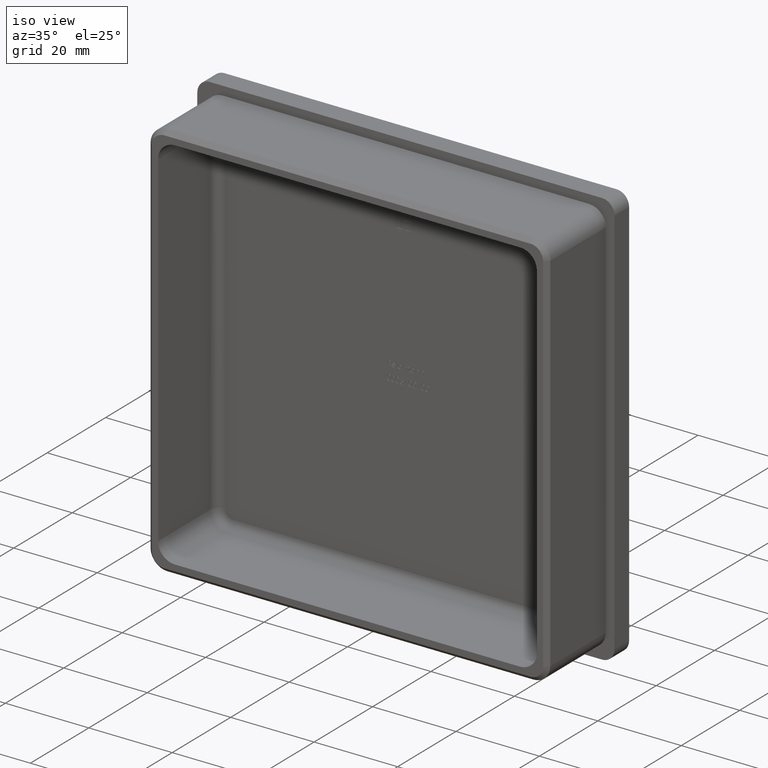
[diagram: clean part render]
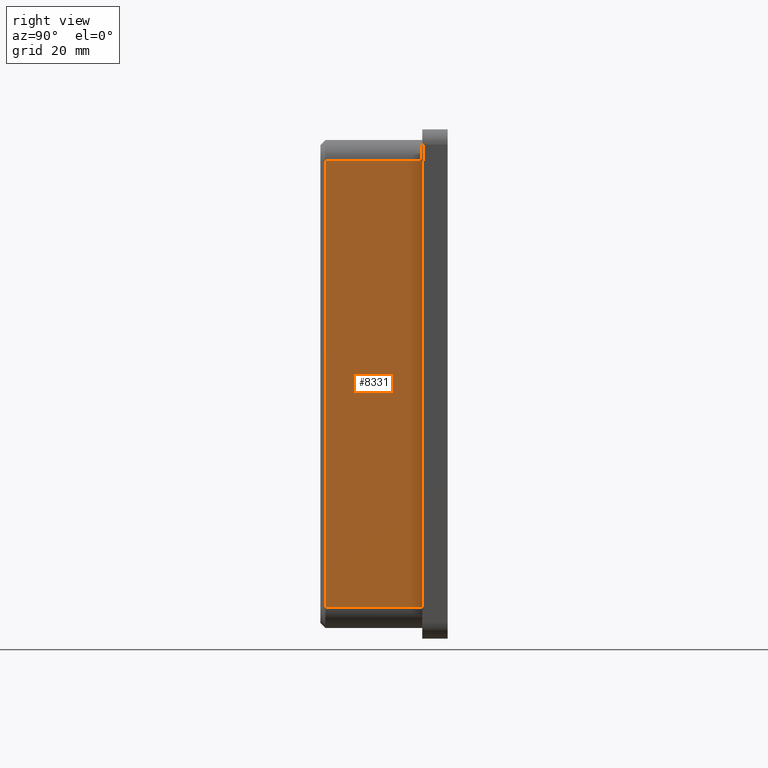
[diagram: tour spotlight — one face highlighted and labeled with its STEP entity id]
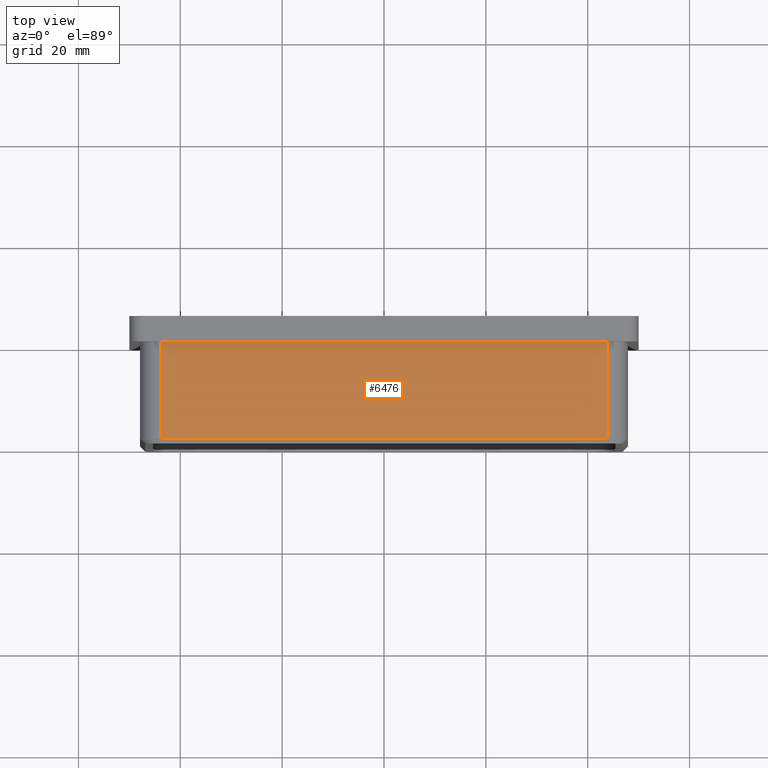
[diagram: tour spotlight — one face highlighted and labeled with its STEP entity id]
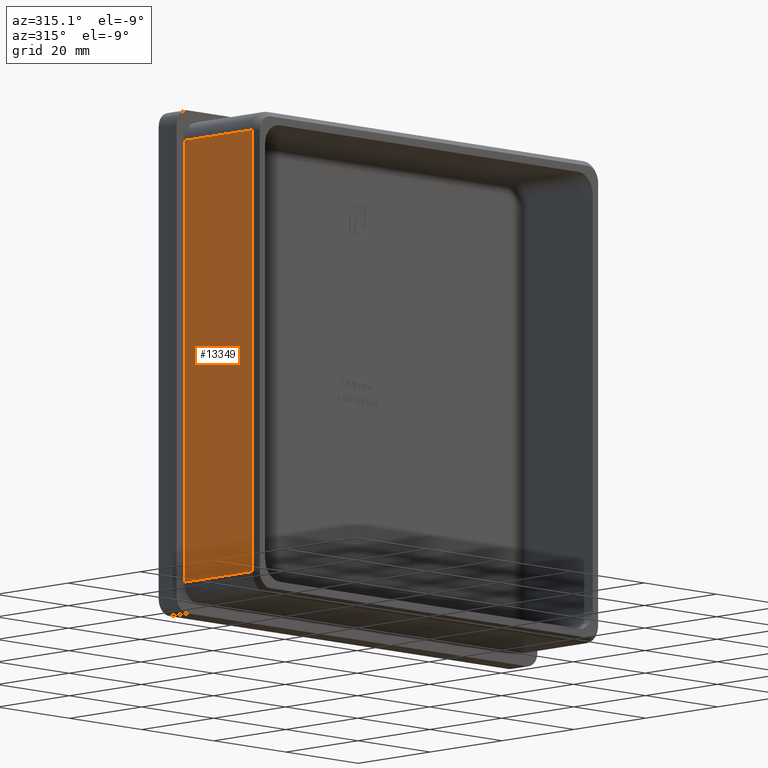
[diagram: tour spotlight — one face highlighted and labeled with its STEP entity id]
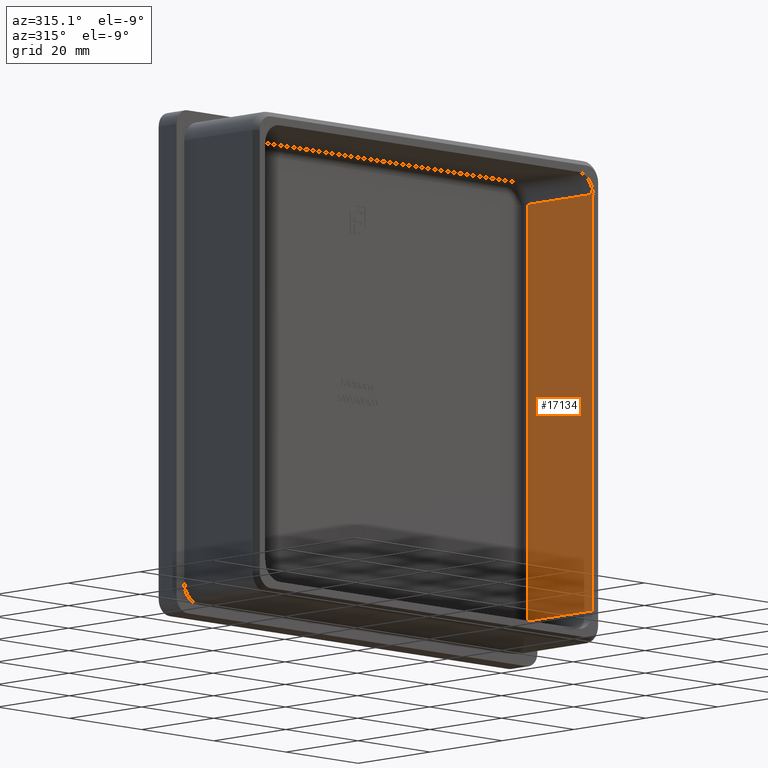
[diagram: tour spotlight — one face highlighted and labeled with its STEP entity id]
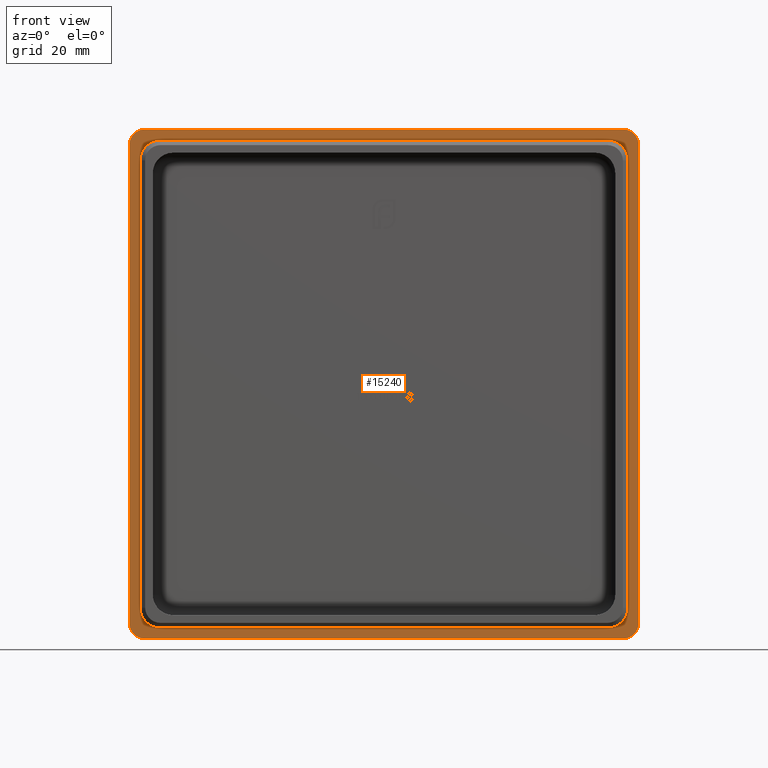
[diagram: tour spotlight — one face highlighted and labeled with its STEP entity id]
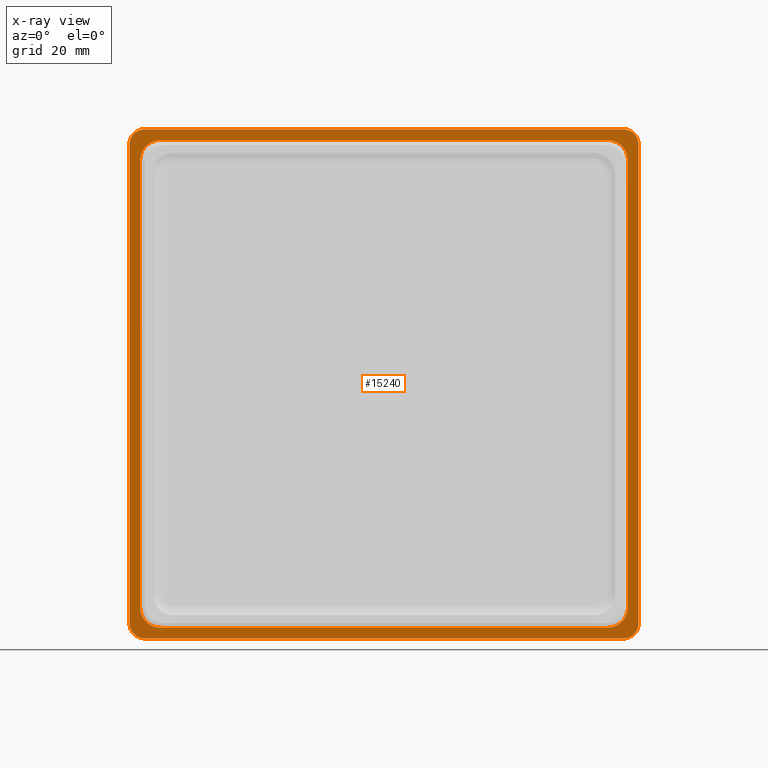
[diagram: x-ray of the same camera — body ghosted, this tour face saturated]
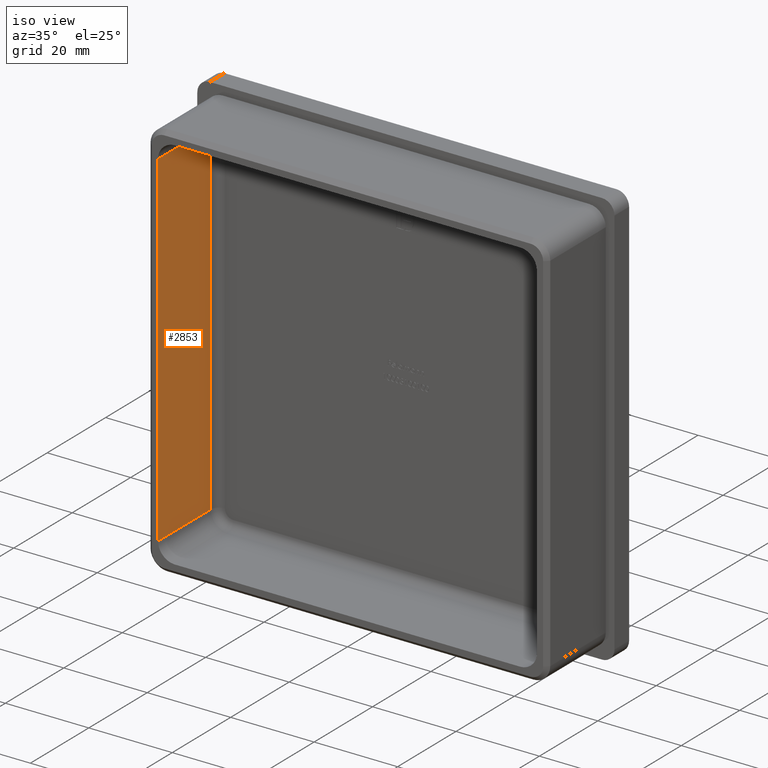
[diagram: tour spotlight — one face highlighted and labeled with its STEP entity id]
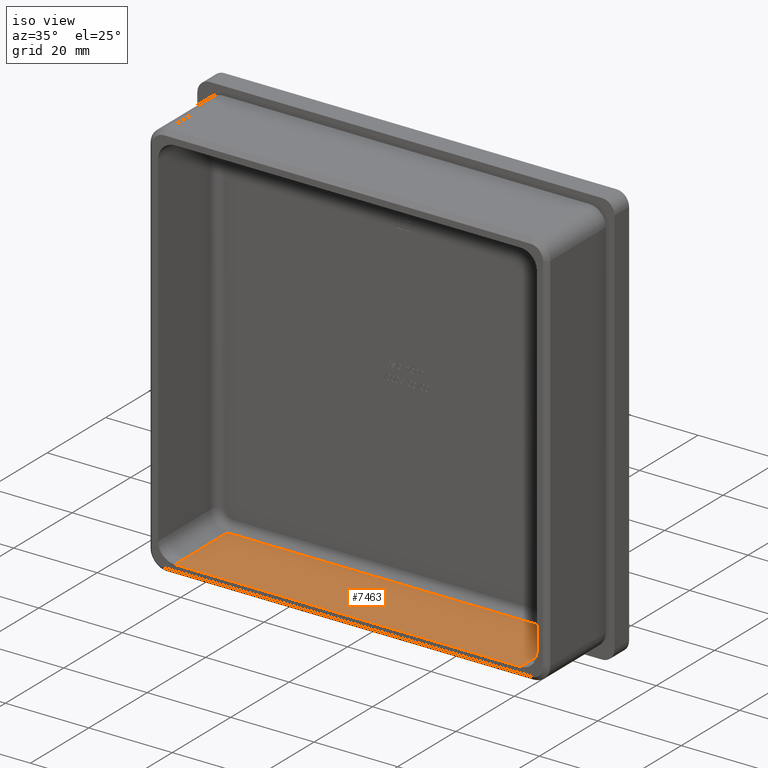
[diagram: tour spotlight — one face highlighted and labeled with its STEP entity id]
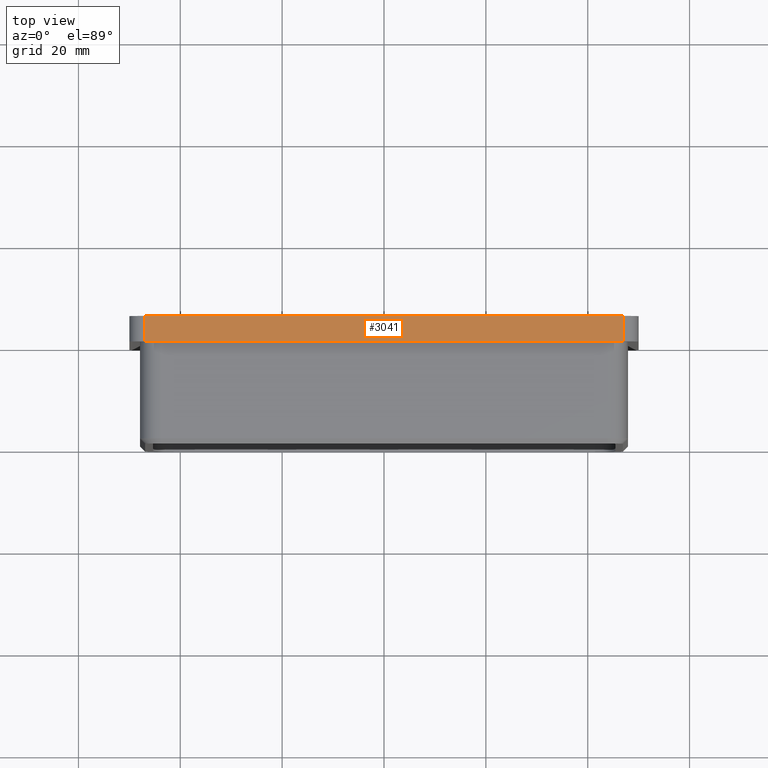
[diagram: tour spotlight — one face highlighted and labeled with its STEP entity id]
A machine part: a face-by-face anatomy tour. The part has 314 B-rep faces; the first image is the clean iso view, then the 8 largest visible faces are spotlighted one at a time (largest first), each with its STEP entity span.

Face 1 — right view, entity #8331. In plain terms, the highlighted planar face has unit normal (-1, 0, -0).
Definition (entity closure, byte-faithful):
#1013 = DIRECTION ( 'NONE',  ( -0.000000000000000000, -0.000000000000000000, 1.000000000000000000 ) ) ;
#1599 = ORIENTED_EDGE ( 'NONE', *, *, #6921, .T. ) ;
#1855 = ORIENTED_EDGE ( 'NONE', *, *, #3246, .T. ) ;
#2155 = DIRECTION ( 'NONE',  ( 0.000000000000000000, 1.000000000000000000, 0.000000000000000000 ) ) ;
#2304 = CARTESIAN_POINT ( 'NONE',  ( 47.90000000000001279, 0.000000000000000000, 47.90000000000000568 ) ) ;
#2632 = VERTEX_POINT ( 'NONE', #3455 ) ;
#3246 = EDGE_CURVE ( 'NONE', #14150, #15323, #3602, .T. ) ;
#3357 = VECTOR ( 'NONE', #1013, 1000.000000000000000 ) ;
#3455 = CARTESIAN_POINT ( 'NONE',  ( 47.90000000000001279, -18.99999999999998579, -43.90000000000001279 ) ) ;
#3602 = LINE ( 'NONE', #3964, #8641 ) ;
#3673 = ORIENTED_EDGE ( 'NONE', *, *, #5553, .T. ) ;
#3767 = CARTESIAN_POINT ( 'NONE',  ( 47.90000000000001279, 0.000000000000000000, 43.89999999999999858 ) ) ;
#3964 = CARTESIAN_POINT ( 'NONE',  ( 47.90000000000001279, -20.00000000000000000, 43.89999999999999858 ) ) ;
#3972 = FACE_OUTER_BOUND ( 'NONE', #5838, .T. ) ;
#4655 = VECTOR ( 'NONE', #2155, 1000.000000000000000 ) ;
#5259 = CARTESIAN_POINT ( 'NONE',  ( 47.90000000000001279, 0.000000000000000000, -43.89999999999998437 ) ) ;
#5553 = EDGE_CURVE ( 'NONE', #7032, #14150, #15803, .T. ) ;
#5838 = EDGE_LOOP ( 'NONE', ( #1855, #14302, #1599, #3673 ) ) ;
#5841 = LINE ( 'NONE', #18059, #9334 ) ;
#6921 = EDGE_CURVE ( 'NONE', #2632, #7032, #12087, .T. ) ;
#6945 = CARTESIAN_POINT ( 'NONE',  ( 47.90000000000001279, -18.99999999999998579, 43.89999999999999858 ) ) ;
#7032 = VERTEX_POINT ( 'NONE', #5259 ) ;
#7334 = CARTESIAN_POINT ( 'NONE',  ( 47.90000000000001279, -20.00000000000000000, 47.90000000000000568 ) ) ;
#8331 = ADVANCED_FACE ( 'NONE', ( #3972 ), #8674, .F. ) ;
#8641 = VECTOR ( 'NONE', #15186, 1000.000000000000000 ) ;
#8674 = PLANE ( 'NONE',  #14330 ) ;
#9334 = VECTOR ( 'NONE', #10950, 1000.000000000000000 ) ;
#10004 = DIRECTION ( 'NONE',  ( -1.000000000000000000, 0.000000000000000000, -0.000000000000000000 ) ) ;
#10125 = DIRECTION ( 'NONE',  ( -0.000000000000000000, 0.000000000000000000, 1.000000000000000000 ) ) ;
#10950 = DIRECTION ( 'NONE',  ( 0.000000000000000000, 0.000000000000000000, -1.000000000000000000 ) ) ;
#12087 = LINE ( 'NONE', #16017, #4655 ) ;
#14150 = VERTEX_POINT ( 'NONE', #3767 ) ;
#14302 = ORIENTED_EDGE ( 'NONE', *, *, #16723, .T. ) ;
#14330 = AXIS2_PLACEMENT_3D ( 'NONE', #7334, #10004, #10125 ) ;
#15186 = DIRECTION ( 'NONE',  ( -0.000000000000000000, -1.000000000000000000, -0.000000000000000000 ) ) ;
#15323 = VERTEX_POINT ( 'NONE', #6945 ) ;
#15803 = LINE ( 'NONE', #2304, #3357 ) ;
#16017 = CARTESIAN_POINT ( 'NONE',  ( 47.90000000000001279, -20.00000000000000000, -43.90000000000001279 ) ) ;
#16723 = EDGE_CURVE ( 'NONE', #15323, #2632, #5841, .T. ) ;
#18059 = CARTESIAN_POINT ( 'NONE',  ( 47.90000000000001279, -18.99999999999998579, -43.89999999999998437 ) ) ;

Face 2 — top view, entity #6476. In plain terms, the highlighted planar face has unit normal (-0, 0, -1).
Definition (entity closure, byte-faithful):
#61 = DIRECTION ( 'NONE',  ( 1.000000000000000000, 0.000000000000000000, -7.243104283828003370E-17 ) ) ;
#63 = VECTOR ( 'NONE', #925, 1000.000000000000000 ) ;
#409 = DIRECTION ( 'NONE',  ( 0.000000000000000000, 1.000000000000000000, 0.000000000000000000 ) ) ;
#603 = DIRECTION ( 'NONE',  ( -0.000000000000000000, -1.000000000000000000, -0.000000000000000000 ) ) ;
#869 = ORIENTED_EDGE ( 'NONE', *, *, #17772, .T. ) ;
#903 = VERTEX_POINT ( 'NONE', #16320 ) ;
#925 = DIRECTION ( 'NONE',  ( -1.000000000000000000, -0.000000000000000000, 7.243104283828003370E-17 ) ) ;
#3251 = VECTOR ( 'NONE', #61, 1000.000000000000000 ) ;
#3495 = CARTESIAN_POINT ( 'NONE',  ( -47.90000000000001279, 0.000000000000000000, 47.90000000000001279 ) ) ;
#3543 = LINE ( 'NONE', #3495, #63 ) ;
#3927 = VECTOR ( 'NONE', #603, 1000.000000000000000 ) ;
#4299 = LINE ( 'NONE', #11411, #6474 ) ;
#5110 = FACE_OUTER_BOUND ( 'NONE', #9391, .T. ) ;
#6474 = VECTOR ( 'NONE', #409, 1000.000000000000000 ) ;
#6476 = ADVANCED_FACE ( 'NONE', ( #5110 ), #6559, .F. ) ;
#6559 = PLANE ( 'NONE',  #7319 ) ;
#7319 = AXIS2_PLACEMENT_3D ( 'NONE', #14735, #16334, #10836 ) ;
#8056 = EDGE_CURVE ( 'NONE', #11578, #903, #3543, .T. ) ;
#8312 = ORIENTED_EDGE ( 'NONE', *, *, #8056, .T. ) ;
#8478 = CARTESIAN_POINT ( 'NONE',  ( 43.89999999999997726, -18.99999999999998579, 47.90000000000000568 ) ) ;
#9391 = EDGE_LOOP ( 'NONE', ( #16371, #11603, #869, #8312 ) ) ;
#9807 = VERTEX_POINT ( 'NONE', #11026 ) ;
#10015 = CARTESIAN_POINT ( 'NONE',  ( 43.89999999999997726, 0.000000000000000000, 47.90000000000000568 ) ) ;
#10836 = DIRECTION ( 'NONE',  ( -1.000000000000000000, 0.000000000000000000, 7.243104283828003370E-17 ) ) ;
#11026 = CARTESIAN_POINT ( 'NONE',  ( -43.90000000000000568, -18.99999999999998579, 47.90000000000001279 ) ) ;
#11411 = CARTESIAN_POINT ( 'NONE',  ( 43.90000000000000568, -20.00000000000000000, 47.90000000000000568 ) ) ;
#11578 = VERTEX_POINT ( 'NONE', #10015 ) ;
#11603 = ORIENTED_EDGE ( 'NONE', *, *, #15371, .T. ) ;
#12022 = CARTESIAN_POINT ( 'NONE',  ( -43.90000000000000568, -20.00000000000000000, 47.90000000000001279 ) ) ;
#13509 = EDGE_CURVE ( 'NONE', #903, #9807, #16837, .T. ) ;
#14735 = CARTESIAN_POINT ( 'NONE',  ( -47.90000000000001279, -20.00000000000000000, 47.90000000000001279 ) ) ;
#15371 = EDGE_CURVE ( 'NONE', #9807, #17454, #16133, .T. ) ;
#16094 = CARTESIAN_POINT ( 'NONE',  ( 43.90000000000000568, -18.99999999999998579, 47.90000000000000568 ) ) ;
#16133 = LINE ( 'NONE', #8478, #3251 ) ;
#16320 = CARTESIAN_POINT ( 'NONE',  ( -43.90000000000000568, 0.000000000000000000, 47.90000000000001279 ) ) ;
#16334 = DIRECTION ( 'NONE',  ( -7.243104283828003370E-17, 0.000000000000000000, -1.000000000000000000 ) ) ;
#16371 = ORIENTED_EDGE ( 'NONE', *, *, #13509, .T. ) ;
#16837 = LINE ( 'NONE', #12022, #3927 ) ;
#17454 = VERTEX_POINT ( 'NONE', #16094 ) ;
#17772 = EDGE_CURVE ( 'NONE', #17454, #11578, #4299, .T. ) ;

Face 3 — auxiliary view, entity #13349. In plain terms, the highlighted planar face has unit normal (1, 0, 0).
Definition (entity closure, byte-faithful):
#738 = CARTESIAN_POINT ( 'NONE',  ( -47.90000000000001279, -18.99999999999998579, 43.90000000000000568 ) ) ;
#1496 = ORIENTED_EDGE ( 'NONE', *, *, #3074, .T. ) ;
#1680 = CARTESIAN_POINT ( 'NONE',  ( -47.90000000000001279, -18.99999999999998579, -43.90000000000000568 ) ) ;
#2192 = VECTOR ( 'NONE', #12072, 1000.000000000000000 ) ;
#2308 = ORIENTED_EDGE ( 'NONE', *, *, #4818, .T. ) ;
#2714 = EDGE_CURVE ( 'NONE', #15087, #15053, #8192, .T. ) ;
#3074 = EDGE_CURVE ( 'NONE', #5816, #15087, #5999, .T. ) ;
#3270 = CARTESIAN_POINT ( 'NONE',  ( -47.90000000000001279, -20.00000000000000000, 43.90000000000000568 ) ) ;
#3305 = PLANE ( 'NONE',  #6282 ) ;
#3517 = DIRECTION ( 'NONE',  ( 0.000000000000000000, -0.000000000000000000, -1.000000000000000000 ) ) ;
#3572 = CARTESIAN_POINT ( 'NONE',  ( -47.90000000000001279, 0.000000000000000000, 47.90000000000001279 ) ) ;
#3696 = CARTESIAN_POINT ( 'NONE',  ( -47.90000000000001279, 0.000000000000000000, -43.89999999999997726 ) ) ;
#4818 = EDGE_CURVE ( 'NONE', #15053, #16541, #11662, .T. ) ;
#5349 = VECTOR ( 'NONE', #13061, 1000.000000000000000 ) ;
#5816 = VERTEX_POINT ( 'NONE', #1680 ) ;
#5903 = LINE ( 'NONE', #17943, #2192 ) ;
#5999 = LINE ( 'NONE', #738, #5349 ) ;
#6186 = ORIENTED_EDGE ( 'NONE', *, *, #10885, .T. ) ;
#6247 = ORIENTED_EDGE ( 'NONE', *, *, #2714, .T. ) ;
#6282 = AXIS2_PLACEMENT_3D ( 'NONE', #8682, #7341, #10075 ) ;
#6318 = FACE_OUTER_BOUND ( 'NONE', #11683, .T. ) ;
#7341 = DIRECTION ( 'NONE',  ( 1.000000000000000000, 0.000000000000000000, 0.000000000000000000 ) ) ;
#7874 = CARTESIAN_POINT ( 'NONE',  ( -47.90000000000001279, -18.99999999999998579, 43.90000000000000568 ) ) ;
#7981 = VECTOR ( 'NONE', #15958, 1000.000000000000000 ) ;
#8192 = LINE ( 'NONE', #3270, #7981 ) ;
#8682 = CARTESIAN_POINT ( 'NONE',  ( -47.90000000000001279, -20.00000000000000000, 47.90000000000001279 ) ) ;
#8824 = VECTOR ( 'NONE', #3517, 1000.000000000000000 ) ;
#10075 = DIRECTION ( 'NONE',  ( 0.000000000000000000, 0.000000000000000000, -1.000000000000000000 ) ) ;
#10885 = EDGE_CURVE ( 'NONE', #16541, #5816, #5903, .T. ) ;
#11662 = LINE ( 'NONE', #3572, #8824 ) ;
#11683 = EDGE_LOOP ( 'NONE', ( #6186, #1496, #6247, #2308 ) ) ;
#11847 = CARTESIAN_POINT ( 'NONE',  ( -47.90000000000001279, 0.000000000000000000, 43.90000000000000568 ) ) ;
#12072 = DIRECTION ( 'NONE',  ( -0.000000000000000000, -1.000000000000000000, -0.000000000000000000 ) ) ;
#13061 = DIRECTION ( 'NONE',  ( 0.000000000000000000, 0.000000000000000000, 1.000000000000000000 ) ) ;
#13349 = ADVANCED_FACE ( 'NONE', ( #6318 ), #3305, .F. ) ;
#15053 = VERTEX_POINT ( 'NONE', #11847 ) ;
#15087 = VERTEX_POINT ( 'NONE', #7874 ) ;
#15958 = DIRECTION ( 'NONE',  ( -0.000000000000000000, 1.000000000000000000, 0.000000000000000000 ) ) ;
#16541 = VERTEX_POINT ( 'NONE', #3696 ) ;
#17943 = CARTESIAN_POINT ( 'NONE',  ( -47.90000000000001279, -20.00000000000000000, -43.90000000000000568 ) ) ;

Face 4 — auxiliary view, entity #17134. In plain terms, the highlighted planar face has unit normal (-1, 0, -0).
Definition (entity closure, byte-faithful):
#1607 = DIRECTION ( 'NONE',  ( -0.000000000000000000, -1.000000000000000000, -0.000000000000000000 ) ) ;
#1761 = EDGE_LOOP ( 'NONE', ( #12954, #6416, #8022, #4663 ) ) ;
#1786 = CARTESIAN_POINT ( 'NONE',  ( 45.40000000000001279, -20.00000000000000000, -41.40000000000000568 ) ) ;
#2335 = AXIS2_PLACEMENT_3D ( 'NONE', #15816, #6166, #3426 ) ;
#2674 = CARTESIAN_POINT ( 'NONE',  ( 45.40000000000001279, -1.999999999999998224, -41.40000000000000568 ) ) ;
#3351 = VECTOR ( 'NONE', #6828, 1000.000000000000000 ) ;
#3395 = CARTESIAN_POINT ( 'NONE',  ( 45.40000000000001279, 0.000000000000000000, 41.40000000000000568 ) ) ;
#3426 = DIRECTION ( 'NONE',  ( -0.000000000000000000, 0.000000000000000000, 1.000000000000000000 ) ) ;
#3953 = VERTEX_POINT ( 'NONE', #2674 ) ;
#3993 = LINE ( 'NONE', #7296, #10329 ) ;
#4346 = EDGE_CURVE ( 'NONE', #5238, #3953, #16039, .T. ) ;
#4663 = ORIENTED_EDGE ( 'NONE', *, *, #16489, .T. ) ;
#5016 = EDGE_CURVE ( 'NONE', #3953, #10281, #3993, .T. ) ;
#5075 = LINE ( 'NONE', #3395, #3351 ) ;
#5238 = VERTEX_POINT ( 'NONE', #10806 ) ;
#5875 = CARTESIAN_POINT ( 'NONE',  ( 45.40000000000001279, -20.00000000000000000, 41.40000000000000568 ) ) ;
#6046 = PLANE ( 'NONE',  #2335 ) ;
#6166 = DIRECTION ( 'NONE',  ( -1.000000000000000000, 0.000000000000000000, -0.000000000000000000 ) ) ;
#6416 = ORIENTED_EDGE ( 'NONE', *, *, #4346, .T. ) ;
#6828 = DIRECTION ( 'NONE',  ( 0.000000000000000000, 1.000000000000000000, 0.000000000000000000 ) ) ;
#7296 = CARTESIAN_POINT ( 'NONE',  ( 45.40000000000001279, -20.00000000000000000, -41.40000000000000568 ) ) ;
#7966 = EDGE_CURVE ( 'NONE', #10335, #5238, #5075, .T. ) ;
#8022 = ORIENTED_EDGE ( 'NONE', *, *, #5016, .T. ) ;
#10281 = VERTEX_POINT ( 'NONE', #1786 ) ;
#10329 = VECTOR ( 'NONE', #1607, 1000.000000000000000 ) ;
#10335 = VERTEX_POINT ( 'NONE', #5875 ) ;
#10410 = CARTESIAN_POINT ( 'NONE',  ( 45.40000000000001279, -20.00000000000000000, 45.40000000000001279 ) ) ;
#10478 = DIRECTION ( 'NONE',  ( -0.000000000000000000, -0.000000000000000000, -1.000000000000000000 ) ) ;
#10806 = CARTESIAN_POINT ( 'NONE',  ( 45.40000000000001279, -2.000000000000000000, 41.40000000000000568 ) ) ;
#11888 = CARTESIAN_POINT ( 'NONE',  ( 45.40000000000001279, -1.999999999999998224, 45.40000000000001279 ) ) ;
#12954 = ORIENTED_EDGE ( 'NONE', *, *, #7966, .T. ) ;
#13914 = VECTOR ( 'NONE', #16033, 1000.000000000000000 ) ;
#14279 = VECTOR ( 'NONE', #10478, 1000.000000000000000 ) ;
#14354 = LINE ( 'NONE', #10410, #13914 ) ;
#15816 = CARTESIAN_POINT ( 'NONE',  ( 45.40000000000001279, -20.00000000000000000, 45.40000000000001279 ) ) ;
#16033 = DIRECTION ( 'NONE',  ( -0.000000000000000000, -0.000000000000000000, 1.000000000000000000 ) ) ;
#16039 = LINE ( 'NONE', #11888, #14279 ) ;
#16489 = EDGE_CURVE ( 'NONE', #10281, #10335, #14354, .T. ) ;
#17134 = ADVANCED_FACE ( 'NONE', ( #17864 ), #6046, .T. ) ;
#17864 = FACE_OUTER_BOUND ( 'NONE', #1761, .T. ) ;

Face 5 — front view, entity #15240. An x-ray twin of the same camera follows (body ghosted, this face saturated) — the face is partly hidden behind the body. In plain terms, the highlighted planar face has unit normal (0, 1, 0).
Definition (entity closure, byte-faithful):
#14 = ORIENTED_EDGE ( 'NONE', *, *, #10259, .F. ) ;
#63 = VECTOR ( 'NONE', #925, 1000.000000000000000 ) ;
#156 = EDGE_CURVE ( 'NONE', #929, #5094, #6701, .T. ) ;
#299 = CARTESIAN_POINT ( 'NONE',  ( -43.90000000000000568, 0.000000000000000000, 43.90000000000000568 ) ) ;
#407 = DIRECTION ( 'NONE',  ( 0.000000000000000000, 0.000000000000000000, 1.000000000000000000 ) ) ;
#499 = EDGE_CURVE ( 'NONE', #11578, #14150, #5842, .T. ) ;
#553 = CARTESIAN_POINT ( 'NONE',  ( 47.00000000000001421, 0.000000000000000000, 50.00000000000000711 ) ) ;
#672 = CARTESIAN_POINT ( 'NONE',  ( 47.00000000000000711, 0.000000000000000000, 47.00000000000000711 ) ) ;
#804 = CARTESIAN_POINT ( 'NONE',  ( -46.99999999999998579, 0.000000000000000000, 47.00000000000000711 ) ) ;
#903 = VERTEX_POINT ( 'NONE', #16320 ) ;
#925 = DIRECTION ( 'NONE',  ( -1.000000000000000000, -0.000000000000000000, 7.243104283828003370E-17 ) ) ;
#929 = VERTEX_POINT ( 'NONE', #12537 ) ;
#999 = DIRECTION ( 'NONE',  ( 0.000000000000000000, 0.000000000000000000, 1.000000000000000000 ) ) ;
#1013 = DIRECTION ( 'NONE',  ( -0.000000000000000000, -0.000000000000000000, 1.000000000000000000 ) ) ;
#1167 = VERTEX_POINT ( 'NONE', #553 ) ;
#1428 = CARTESIAN_POINT ( 'NONE',  ( 43.89999999999997726, 0.000000000000000000, -47.90000000000001279 ) ) ;
#1862 = CARTESIAN_POINT ( 'NONE',  ( 46.99999999999999289, 0.000000000000000000, -49.99999999999999289 ) ) ;
#2077 = DIRECTION ( 'NONE',  ( -0.000000000000000000, -1.000000000000000000, -0.000000000000000000 ) ) ;
#2304 = CARTESIAN_POINT ( 'NONE',  ( 47.90000000000001279, 0.000000000000000000, 47.90000000000000568 ) ) ;
#2389 = VECTOR ( 'NONE', #2518, 1000.000000000000000 ) ;
#2518 = DIRECTION ( 'NONE',  ( -1.000000000000000000, -0.000000000000000000, -0.000000000000000000 ) ) ;
#2609 = ORIENTED_EDGE ( 'NONE', *, *, #156, .F. ) ;
#2750 = DIRECTION ( 'NONE',  ( 0.000000000000000000, -0.000000000000000000, 1.000000000000000000 ) ) ;
#2822 = CIRCLE ( 'NONE', #16126, 4.000000000000003553 ) ;
#3304 = AXIS2_PLACEMENT_3D ( 'NONE', #9357, #6601, #999 ) ;
#3331 = VERTEX_POINT ( 'NONE', #11941 ) ;
#3357 = VECTOR ( 'NONE', #1013, 1000.000000000000000 ) ;
#3433 = CARTESIAN_POINT ( 'NONE',  ( -47.90000000000001279, -0.000000000000000000, -47.90000000000001279 ) ) ;
#3495 = CARTESIAN_POINT ( 'NONE',  ( -47.90000000000001279, 0.000000000000000000, 47.90000000000001279 ) ) ;
#3517 = DIRECTION ( 'NONE',  ( 0.000000000000000000, -0.000000000000000000, -1.000000000000000000 ) ) ;
#3523 = VERTEX_POINT ( 'NONE', #1862 ) ;
#3543 = LINE ( 'NONE', #3495, #63 ) ;
#3572 = CARTESIAN_POINT ( 'NONE',  ( -47.90000000000001279, 0.000000000000000000, 47.90000000000001279 ) ) ;
#3618 = AXIS2_PLACEMENT_3D ( 'NONE', #8161, #9557, #2750 ) ;
#3640 = EDGE_LOOP ( 'NONE', ( #11243, #6290, #14677, #6322, #14, #9016, #2609, #11267 ) ) ;
#3662 = CARTESIAN_POINT ( 'NONE',  ( -50.00000000000000711, 0.000000000000000000, -49.99999999999999289 ) ) ;
#3680 = FACE_BOUND ( 'NONE', #16373, .T. ) ;
#3696 = CARTESIAN_POINT ( 'NONE',  ( -47.90000000000001279, 0.000000000000000000, -43.89999999999997726 ) ) ;
#3767 = CARTESIAN_POINT ( 'NONE',  ( 47.90000000000001279, 0.000000000000000000, 43.89999999999999858 ) ) ;
#3795 = EDGE_CURVE ( 'NONE', #6249, #14256, #17591, .T. ) ;
#3988 = EDGE_CURVE ( 'NONE', #6249, #16541, #6417, .T. ) ;
#4094 = DIRECTION ( 'NONE',  ( 0.000000000000000000, 0.000000000000000000, 1.000000000000000000 ) ) ;
#4330 = ORIENTED_EDGE ( 'NONE', *, *, #499, .T. ) ;
#4643 = DIRECTION ( 'NONE',  ( -6.938893903907222067E-15, 0.000000000000000000, 1.000000000000000000 ) ) ;
#4807 = DIRECTION ( 'NONE',  ( 0.000000000000000000, 0.000000000000000000, 1.000000000000000000 ) ) ;
#4818 = EDGE_CURVE ( 'NONE', #15053, #16541, #11662, .T. ) ;
#5094 = VERTEX_POINT ( 'NONE', #8809 ) ;
#5133 = EDGE_CURVE ( 'NONE', #5944, #5094, #7506, .T. ) ;
#5259 = CARTESIAN_POINT ( 'NONE',  ( 47.90000000000001279, 0.000000000000000000, -43.89999999999998437 ) ) ;
#5553 = EDGE_CURVE ( 'NONE', #7032, #14150, #15803, .T. ) ;
#5842 = CIRCLE ( 'NONE', #3304, 3.999999999999996447 ) ;
#5944 = VERTEX_POINT ( 'NONE', #8294 ) ;
#5965 = DIRECTION ( 'NONE',  ( 0.000000000000000000, 1.000000000000000000, 0.000000000000000000 ) ) ;
#6098 = LINE ( 'NONE', #13317, #2389 ) ;
#6212 = DIRECTION ( 'NONE',  ( 0.000000000000000000, 1.000000000000000000, 0.000000000000000000 ) ) ;
#6249 = VERTEX_POINT ( 'NONE', #11287 ) ;
#6290 = ORIENTED_EDGE ( 'NONE', *, *, #8681, .T. ) ;
#6322 = ORIENTED_EDGE ( 'NONE', *, *, #17116, .T. ) ;
#6417 = CIRCLE ( 'NONE', #17029, 4.000000000000003553 ) ;
#6601 = DIRECTION ( 'NONE',  ( 0.000000000000000000, 1.000000000000000000, 0.000000000000000000 ) ) ;
#6701 = LINE ( 'NONE', #3662, #17207 ) ;
#7032 = VERTEX_POINT ( 'NONE', #5259 ) ;
#7063 = EDGE_CURVE ( 'NONE', #3331, #8642, #16683, .T. ) ;
#7065 = DIRECTION ( 'NONE',  ( 0.000000000000000000, 0.000000000000000000, 1.000000000000000000 ) ) ;
#7127 = CARTESIAN_POINT ( 'NONE',  ( 49.99999999999999289, 0.000000000000000000, -46.99999999999999289 ) ) ;
#7197 = CIRCLE ( 'NONE', #15185, 3.000000000000002665 ) ;
#7506 = CIRCLE ( 'NONE', #11157, 3.000000000000002665 ) ;
#7822 = DIRECTION ( 'NONE',  ( -0.000000000000000000, -1.000000000000000000, -0.000000000000000000 ) ) ;
#8056 = EDGE_CURVE ( 'NONE', #11578, #903, #3543, .T. ) ;
#8161 = CARTESIAN_POINT ( 'NONE',  ( 0.000000000000000000, 0.000000000000000000, 0.000000000000000000 ) ) ;
#8179 = DIRECTION ( 'NONE',  ( -1.387778780781445676E-16, -0.000000000000000000, -1.000000000000000000 ) ) ;
#8272 = ORIENTED_EDGE ( 'NONE', *, *, #3795, .F. ) ;
#8294 = CARTESIAN_POINT ( 'NONE',  ( -46.99999999999998579, 0.000000000000000000, 50.00000000000000711 ) ) ;
#8465 = DIRECTION ( 'NONE',  ( -0.000000000000000000, -1.000000000000000000, -0.000000000000000000 ) ) ;
#8642 = VERTEX_POINT ( 'NONE', #7127 ) ;
#8681 = EDGE_CURVE ( 'NONE', #3523, #8642, #17971, .T. ) ;
#8809 = CARTESIAN_POINT ( 'NONE',  ( -49.99999999999998579, 0.000000000000000000, 47.00000000000000711 ) ) ;
#8824 = VECTOR ( 'NONE', #3517, 1000.000000000000000 ) ;
#8859 = AXIS2_PLACEMENT_3D ( 'NONE', #15981, #6212, #4807 ) ;
#9016 = ORIENTED_EDGE ( 'NONE', *, *, #5133, .T. ) ;
#9234 = DIRECTION ( 'NONE',  ( 0.000000000000000000, 0.000000000000000000, 1.000000000000000000 ) ) ;
#9278 = VECTOR ( 'NONE', #13125, 1000.000000000000000 ) ;
#9328 = DIRECTION ( 'NONE',  ( 2.081668171172168513E-16, 0.000000000000000000, 1.000000000000000000 ) ) ;
#9357 = CARTESIAN_POINT ( 'NONE',  ( 43.90000000000000568, 0.000000000000000000, 43.89999999999999858 ) ) ;
#9557 = DIRECTION ( 'NONE',  ( 0.000000000000000000, 1.000000000000000000, 0.000000000000000000 ) ) ;
#9605 = CARTESIAN_POINT ( 'NONE',  ( -43.90000000000000568, 0.000000000000000000, -43.90000000000000568 ) ) ;
#9674 = CARTESIAN_POINT ( 'NONE',  ( -47.00000000000000711, 0.000000000000000000, -49.99999999999999289 ) ) ;
#9837 = CIRCLE ( 'NONE', #8859, 3.999999999999996447 ) ;
#9843 = VERTEX_POINT ( 'NONE', #9674 ) ;
#10015 = CARTESIAN_POINT ( 'NONE',  ( 43.89999999999997726, 0.000000000000000000, 47.90000000000000568 ) ) ;
#10259 = EDGE_CURVE ( 'NONE', #5944, #1167, #16188, .T. ) ;
#10360 = ORIENTED_EDGE ( 'NONE', *, *, #8056, .F. ) ;
#10727 = EDGE_CURVE ( 'NONE', #7032, #14256, #9837, .T. ) ;
#10994 = CARTESIAN_POINT ( 'NONE',  ( 49.99999999999999289, 0.000000000000000000, -49.99999999999999289 ) ) ;
#11085 = DIRECTION ( 'NONE',  ( 0.000000000000000000, 1.000000000000000000, 0.000000000000000000 ) ) ;
#11157 = AXIS2_PLACEMENT_3D ( 'NONE', #804, #7822, #9234 ) ;
#11243 = ORIENTED_EDGE ( 'NONE', *, *, #14618, .F. ) ;
#11247 = DIRECTION ( 'NONE',  ( -0.000000000000000000, -1.000000000000000000, -0.000000000000000000 ) ) ;
#11267 = ORIENTED_EDGE ( 'NONE', *, *, #14724, .T. ) ;
#11287 = CARTESIAN_POINT ( 'NONE',  ( -43.90000000000000568, 0.000000000000000000, -47.90000000000001279 ) ) ;
#11446 = VECTOR ( 'NONE', #8179, 1000.000000000000000 ) ;
#11578 = VERTEX_POINT ( 'NONE', #10015 ) ;
#11662 = LINE ( 'NONE', #3572, #8824 ) ;
#11847 = CARTESIAN_POINT ( 'NONE',  ( -47.90000000000001279, 0.000000000000000000, 43.90000000000000568 ) ) ;
#11941 = CARTESIAN_POINT ( 'NONE',  ( 50.00000000000000711, 0.000000000000000000, 47.00000000000000711 ) ) ;
#12428 = DIRECTION ( 'NONE',  ( 0.000000000000000000, 0.000000000000000000, 1.000000000000000000 ) ) ;
#12537 = CARTESIAN_POINT ( 'NONE',  ( -50.00000000000000711, 0.000000000000000000, -46.99999999999999289 ) ) ;
#12912 = VECTOR ( 'NONE', #17006, 1000.000000000000000 ) ;
#13125 = DIRECTION ( 'NONE',  ( 1.000000000000000000, 0.000000000000000000, 0.000000000000000000 ) ) ;
#13317 = CARTESIAN_POINT ( 'NONE',  ( -50.00000000000000711, 0.000000000000000000, -49.99999999999999289 ) ) ;
#13681 = CIRCLE ( 'NONE', #17086, 3.000000000000002665 ) ;
#14069 = CARTESIAN_POINT ( 'NONE',  ( 46.99999999999999289, 0.000000000000000000, -46.99999999999999289 ) ) ;
#14132 = ORIENTED_EDGE ( 'NONE', *, *, #3988, .T. ) ;
#14150 = VERTEX_POINT ( 'NONE', #3767 ) ;
#14242 = ORIENTED_EDGE ( 'NONE', *, *, #4818, .F. ) ;
#14256 = VERTEX_POINT ( 'NONE', #1428 ) ;
#14406 = CARTESIAN_POINT ( 'NONE',  ( -49.99999999999998579, 0.000000000000000000, 50.00000000000000711 ) ) ;
#14502 = ORIENTED_EDGE ( 'NONE', *, *, #10727, .T. ) ;
#14618 = EDGE_CURVE ( 'NONE', #3523, #9843, #6098, .T. ) ;
#14677 = ORIENTED_EDGE ( 'NONE', *, *, #7063, .F. ) ;
#14724 = EDGE_CURVE ( 'NONE', #929, #9843, #7197, .T. ) ;
#15053 = VERTEX_POINT ( 'NONE', #11847 ) ;
#15185 = AXIS2_PLACEMENT_3D ( 'NONE', #18108, #11247, #4094 ) ;
#15240 = ADVANCED_FACE ( 'NONE', ( #17903, #3680 ), #18082, .F. ) ;
#15441 = EDGE_CURVE ( 'NONE', #15053, #903, #2822, .T. ) ;
#15803 = LINE ( 'NONE', #2304, #3357 ) ;
#15864 = AXIS2_PLACEMENT_3D ( 'NONE', #14069, #8465, #7065 ) ;
#15981 = CARTESIAN_POINT ( 'NONE',  ( 43.90000000000000568, 0.000000000000000000, -43.90000000000001279 ) ) ;
#16126 = AXIS2_PLACEMENT_3D ( 'NONE', #299, #5965, #407 ) ;
#16188 = LINE ( 'NONE', #14406, #12912 ) ;
#16320 = CARTESIAN_POINT ( 'NONE',  ( -43.90000000000000568, 0.000000000000000000, 47.90000000000001279 ) ) ;
#16373 = EDGE_LOOP ( 'NONE', ( #16893, #14502, #8272, #14132, #14242, #17757, #10360, #4330 ) ) ;
#16541 = VERTEX_POINT ( 'NONE', #3696 ) ;
#16683 = LINE ( 'NONE', #10994, #11446 ) ;
#16893 = ORIENTED_EDGE ( 'NONE', *, *, #5553, .F. ) ;
#17006 = DIRECTION ( 'NONE',  ( 1.000000000000000000, 0.000000000000000000, 0.000000000000000000 ) ) ;
#17029 = AXIS2_PLACEMENT_3D ( 'NONE', #9605, #11085, #12428 ) ;
#17086 = AXIS2_PLACEMENT_3D ( 'NONE', #672, #2077, #4643 ) ;
#17116 = EDGE_CURVE ( 'NONE', #3331, #1167, #13681, .T. ) ;
#17207 = VECTOR ( 'NONE', #9328, 1000.000000000000000 ) ;
#17591 = LINE ( 'NONE', #3433, #9278 ) ;
#17757 = ORIENTED_EDGE ( 'NONE', *, *, #15441, .T. ) ;
#17903 = FACE_OUTER_BOUND ( 'NONE', #3640, .T. ) ;
#17971 = CIRCLE ( 'NONE', #15864, 3.000000000000002665 ) ;
#18082 = PLANE ( 'NONE',  #3618 ) ;
#18108 = CARTESIAN_POINT ( 'NONE',  ( -47.00000000000000711, 0.000000000000000000, -46.99999999999999289 ) ) ;

Face 6 — iso view, entity #2853. In plain terms, the highlighted planar face has unit normal (1, 0, 0).
Definition (entity closure, byte-faithful):
#46 = CARTESIAN_POINT ( 'NONE',  ( -45.40000000000001279, -1.999999999999998224, 45.40000000000001279 ) ) ;
#717 = VECTOR ( 'NONE', #15920, 1000.000000000000000 ) ;
#965 = AXIS2_PLACEMENT_3D ( 'NONE', #8506, #2778, #16690 ) ;
#1300 = VERTEX_POINT ( 'NONE', #4083 ) ;
#1362 = VERTEX_POINT ( 'NONE', #2698 ) ;
#2030 = VECTOR ( 'NONE', #4374, 1000.000000000000000 ) ;
#2246 = LINE ( 'NONE', #10419, #717 ) ;
#2353 = LINE ( 'NONE', #9959, #3022 ) ;
#2698 = CARTESIAN_POINT ( 'NONE',  ( -45.40000000000001279, -20.00000000000000000, 41.40000000000000568 ) ) ;
#2778 = DIRECTION ( 'NONE',  ( 1.000000000000000000, 0.000000000000000000, 0.000000000000000000 ) ) ;
#2853 = ADVANCED_FACE ( 'NONE', ( #3620 ), #12466, .T. ) ;
#3022 = VECTOR ( 'NONE', #5989, 1000.000000000000000 ) ;
#3620 = FACE_OUTER_BOUND ( 'NONE', #13583, .T. ) ;
#4083 = CARTESIAN_POINT ( 'NONE',  ( -45.40000000000001279, -20.00000000000000000, -41.40000000000000568 ) ) ;
#4374 = DIRECTION ( 'NONE',  ( -0.000000000000000000, -0.000000000000000000, 1.000000000000000000 ) ) ;
#4503 = DIRECTION ( 'NONE',  ( 0.000000000000000000, -0.000000000000000000, -1.000000000000000000 ) ) ;
#4897 = CARTESIAN_POINT ( 'NONE',  ( -45.40000000000001279, -1.999999999999998224, 41.40000000000000568 ) ) ;
#5602 = ORIENTED_EDGE ( 'NONE', *, *, #7672, .T. ) ;
#5989 = DIRECTION ( 'NONE',  ( -0.000000000000000000, -1.000000000000000000, 0.000000000000000000 ) ) ;
#6439 = VERTEX_POINT ( 'NONE', #15977 ) ;
#7672 = EDGE_CURVE ( 'NONE', #1300, #6439, #2246, .T. ) ;
#7707 = LINE ( 'NONE', #46, #2030 ) ;
#7842 = EDGE_CURVE ( 'NONE', #6439, #8177, #7707, .T. ) ;
#8177 = VERTEX_POINT ( 'NONE', #4897 ) ;
#8506 = CARTESIAN_POINT ( 'NONE',  ( -45.40000000000001279, -20.00000000000000000, 45.40000000000001279 ) ) ;
#8943 = LINE ( 'NONE', #14141, #11566 ) ;
#9959 = CARTESIAN_POINT ( 'NONE',  ( -45.40000000000001279, -20.00000000000000000, 41.40000000000000568 ) ) ;
#10419 = CARTESIAN_POINT ( 'NONE',  ( -45.40000000000001279, 0.000000000000000000, -41.40000000000000568 ) ) ;
#11566 = VECTOR ( 'NONE', #4503, 1000.000000000000000 ) ;
#12455 = ORIENTED_EDGE ( 'NONE', *, *, #7842, .T. ) ;
#12466 = PLANE ( 'NONE',  #965 ) ;
#13548 = ORIENTED_EDGE ( 'NONE', *, *, #13862, .T. ) ;
#13583 = EDGE_LOOP ( 'NONE', ( #5602, #12455, #15636, #13548 ) ) ;
#13862 = EDGE_CURVE ( 'NONE', #1362, #1300, #8943, .T. ) ;
#14141 = CARTESIAN_POINT ( 'NONE',  ( -45.40000000000001279, -20.00000000000000000, 45.40000000000001279 ) ) ;
#15636 = ORIENTED_EDGE ( 'NONE', *, *, #17060, .T. ) ;
#15920 = DIRECTION ( 'NONE',  ( 0.000000000000000000, 1.000000000000000000, -0.000000000000000000 ) ) ;
#15977 = CARTESIAN_POINT ( 'NONE',  ( -45.40000000000001279, -2.000000000000000000, -41.40000000000000568 ) ) ;
#16690 = DIRECTION ( 'NONE',  ( 0.000000000000000000, 0.000000000000000000, -1.000000000000000000 ) ) ;
#17060 = EDGE_CURVE ( 'NONE', #8177, #1362, #2353, .T. ) ;

Face 7 — iso view, entity #7463. In plain terms, the highlighted planar face has unit normal (-0, 0, 1).
Definition (entity closure, byte-faithful):
#417 = LINE ( 'NONE', #14937, #15923 ) ;
#616 = ORIENTED_EDGE ( 'NONE', *, *, #5097, .T. ) ;
#1145 = LINE ( 'NONE', #11799, #8138 ) ;
#3955 = DIRECTION ( 'NONE',  ( -0.000000000000000000, -1.000000000000000000, 0.000000000000000000 ) ) ;
#4197 = EDGE_LOOP ( 'NONE', ( #616, #15665, #6593, #7368 ) ) ;
#4361 = VERTEX_POINT ( 'NONE', #14681 ) ;
#5097 = EDGE_CURVE ( 'NONE', #4361, #11529, #1145, .T. ) ;
#5870 = CARTESIAN_POINT ( 'NONE',  ( 41.40000000000000568, -2.000000000000000000, -45.40000000000001279 ) ) ;
#6171 = EDGE_CURVE ( 'NONE', #11529, #11367, #12980, .T. ) ;
#6575 = DIRECTION ( 'NONE',  ( 1.000000000000000000, 0.000000000000000000, 0.000000000000000000 ) ) ;
#6593 = ORIENTED_EDGE ( 'NONE', *, *, #12188, .T. ) ;
#6780 = CARTESIAN_POINT ( 'NONE',  ( -41.40000000000000568, -1.999999999999998224, -45.40000000000001279 ) ) ;
#7368 = ORIENTED_EDGE ( 'NONE', *, *, #10990, .T. ) ;
#7463 = ADVANCED_FACE ( 'NONE', ( #14035 ), #16174, .T. ) ;
#8040 = DIRECTION ( 'NONE',  ( -0.000000000000000000, 0.000000000000000000, 1.000000000000000000 ) ) ;
#8102 = CARTESIAN_POINT ( 'NONE',  ( -45.40000000000001279, -20.00000000000000000, -45.40000000000001279 ) ) ;
#8138 = VECTOR ( 'NONE', #11857, 1000.000000000000000 ) ;
#8228 = DIRECTION ( 'NONE',  ( -1.000000000000000000, -0.000000000000000000, -0.000000000000000000 ) ) ;
#9185 = LINE ( 'NONE', #10958, #15075 ) ;
#9445 = CARTESIAN_POINT ( 'NONE',  ( -45.40000000000001279, -1.999999999999998224, -45.40000000000001279 ) ) ;
#9769 = VERTEX_POINT ( 'NONE', #10845 ) ;
#10845 = CARTESIAN_POINT ( 'NONE',  ( -41.40000000000000568, -20.00000000000000000, -45.40000000000001279 ) ) ;
#10958 = CARTESIAN_POINT ( 'NONE',  ( -45.40000000000001279, -20.00000000000000000, -45.40000000000001279 ) ) ;
#10990 = EDGE_CURVE ( 'NONE', #9769, #4361, #9185, .T. ) ;
#11367 = VERTEX_POINT ( 'NONE', #6780 ) ;
#11529 = VERTEX_POINT ( 'NONE', #5870 ) ;
#11799 = CARTESIAN_POINT ( 'NONE',  ( 41.40000000000000568, 0.000000000000000000, -45.40000000000001279 ) ) ;
#11857 = DIRECTION ( 'NONE',  ( 0.000000000000000000, 1.000000000000000000, -0.000000000000000000 ) ) ;
#12188 = EDGE_CURVE ( 'NONE', #11367, #9769, #417, .T. ) ;
#12980 = LINE ( 'NONE', #9445, #16246 ) ;
#13848 = AXIS2_PLACEMENT_3D ( 'NONE', #8102, #8040, #6575 ) ;
#14035 = FACE_OUTER_BOUND ( 'NONE', #4197, .T. ) ;
#14681 = CARTESIAN_POINT ( 'NONE',  ( 41.40000000000000568, -20.00000000000000000, -45.40000000000001279 ) ) ;
#14937 = CARTESIAN_POINT ( 'NONE',  ( -41.40000000000000568, -20.00000000000000000, -45.40000000000001279 ) ) ;
#15075 = VECTOR ( 'NONE', #16585, 1000.000000000000000 ) ;
#15665 = ORIENTED_EDGE ( 'NONE', *, *, #6171, .T. ) ;
#15923 = VECTOR ( 'NONE', #3955, 1000.000000000000000 ) ;
#16174 = PLANE ( 'NONE',  #13848 ) ;
#16246 = VECTOR ( 'NONE', #8228, 1000.000000000000000 ) ;
#16585 = DIRECTION ( 'NONE',  ( 1.000000000000000000, 0.000000000000000000, 0.000000000000000000 ) ) ;

Face 8 — top view, entity #3041. In plain terms, the highlighted planar face has unit normal (0, 0, -1).
Definition (entity closure, byte-faithful):
#337 = ORIENTED_EDGE ( 'NONE', *, *, #10259, .T. ) ;
#545 = DIRECTION ( 'NONE',  ( -1.000000000000000000, 0.000000000000000000, -0.000000000000000000 ) ) ;
#553 = CARTESIAN_POINT ( 'NONE',  ( 47.00000000000001421, 0.000000000000000000, 50.00000000000000711 ) ) ;
#623 = CARTESIAN_POINT ( 'NONE',  ( -49.99999999999998579, 5.000000000000000000, 50.00000000000000711 ) ) ;
#1111 = VERTEX_POINT ( 'NONE', #5939 ) ;
#1167 = VERTEX_POINT ( 'NONE', #553 ) ;
#1517 = ORIENTED_EDGE ( 'NONE', *, *, #13064, .F. ) ;
#1552 = AXIS2_PLACEMENT_3D ( 'NONE', #6167, #6284, #545 ) ;
#3041 = ADVANCED_FACE ( 'NONE', ( #11473 ), #16059, .F. ) ;
#3071 = LINE ( 'NONE', #623, #7194 ) ;
#3089 = DIRECTION ( 'NONE',  ( 0.000000000000000000, -1.000000000000000000, 0.000000000000000000 ) ) ;
#5019 = DIRECTION ( 'NONE',  ( 1.000000000000000000, 0.000000000000000000, 0.000000000000000000 ) ) ;
#5939 = CARTESIAN_POINT ( 'NONE',  ( -46.99999999999998579, 5.000000000000000000, 50.00000000000000711 ) ) ;
#5944 = VERTEX_POINT ( 'NONE', #8294 ) ;
#6167 = CARTESIAN_POINT ( 'NONE',  ( -49.99999999999998579, 5.000000000000000000, 50.00000000000000711 ) ) ;
#6236 = EDGE_LOOP ( 'NONE', ( #337, #8773, #1517, #9607 ) ) ;
#6284 = DIRECTION ( 'NONE',  ( 0.000000000000000000, 0.000000000000000000, -1.000000000000000000 ) ) ;
#6555 = VECTOR ( 'NONE', #3089, 1000.000000000000000 ) ;
#6606 = VERTEX_POINT ( 'NONE', #9662 ) ;
#6985 = DIRECTION ( 'NONE',  ( -0.000000000000000000, 1.000000000000000000, -0.000000000000000000 ) ) ;
#7194 = VECTOR ( 'NONE', #5019, 1000.000000000000000 ) ;
#8294 = CARTESIAN_POINT ( 'NONE',  ( -46.99999999999998579, 0.000000000000000000, 50.00000000000000711 ) ) ;
#8773 = ORIENTED_EDGE ( 'NONE', *, *, #16692, .T. ) ;
#9533 = CARTESIAN_POINT ( 'NONE',  ( 47.00000000000001421, 5.000000000000000000, 50.00000000000000711 ) ) ;
#9607 = ORIENTED_EDGE ( 'NONE', *, *, #10287, .T. ) ;
#9662 = CARTESIAN_POINT ( 'NONE',  ( 47.00000000000001421, 5.000000000000000000, 50.00000000000000711 ) ) ;
#10259 = EDGE_CURVE ( 'NONE', #5944, #1167, #16188, .T. ) ;
#10287 = EDGE_CURVE ( 'NONE', #1111, #5944, #15753, .T. ) ;
#11473 = FACE_OUTER_BOUND ( 'NONE', #6236, .T. ) ;
#12835 = LINE ( 'NONE', #9533, #13049 ) ;
#12912 = VECTOR ( 'NONE', #17006, 1000.000000000000000 ) ;
#12956 = CARTESIAN_POINT ( 'NONE',  ( -46.99999999999998579, 5.000000000000000000, 50.00000000000000711 ) ) ;
#13049 = VECTOR ( 'NONE', #6985, 1000.000000000000000 ) ;
#13064 = EDGE_CURVE ( 'NONE', #1111, #6606, #3071, .T. ) ;
#14406 = CARTESIAN_POINT ( 'NONE',  ( -49.99999999999998579, 0.000000000000000000, 50.00000000000000711 ) ) ;
#15753 = LINE ( 'NONE', #12956, #6555 ) ;
#16059 = PLANE ( 'NONE',  #1552 ) ;
#16188 = LINE ( 'NONE', #14406, #12912 ) ;
#16692 = EDGE_CURVE ( 'NONE', #1167, #6606, #12835, .T. ) ;
#17006 = DIRECTION ( 'NONE',  ( 1.000000000000000000, 0.000000000000000000, 0.000000000000000000 ) ) ;